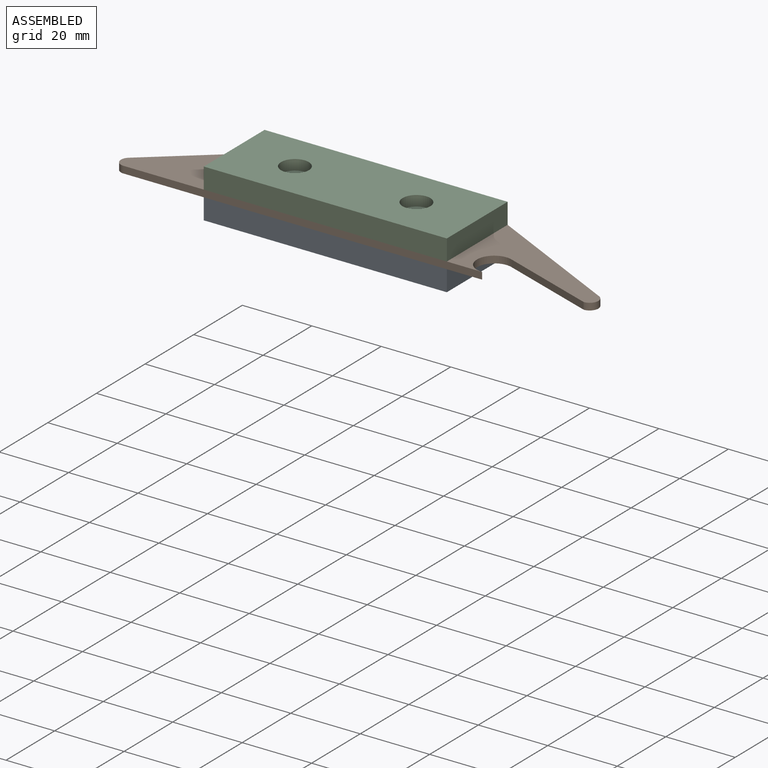
[diagram: assembled view]
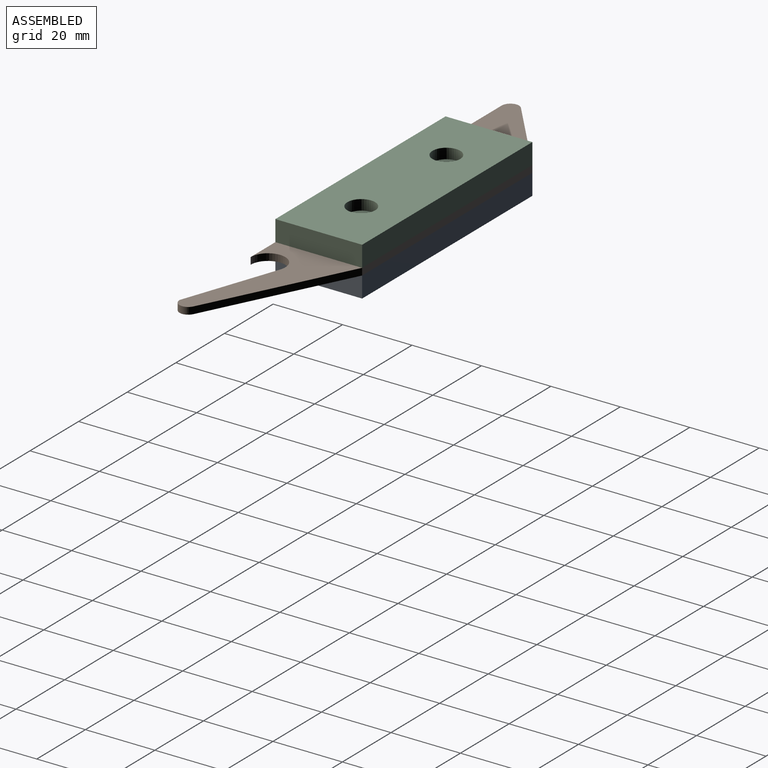
[diagram: assembled view, second angle]
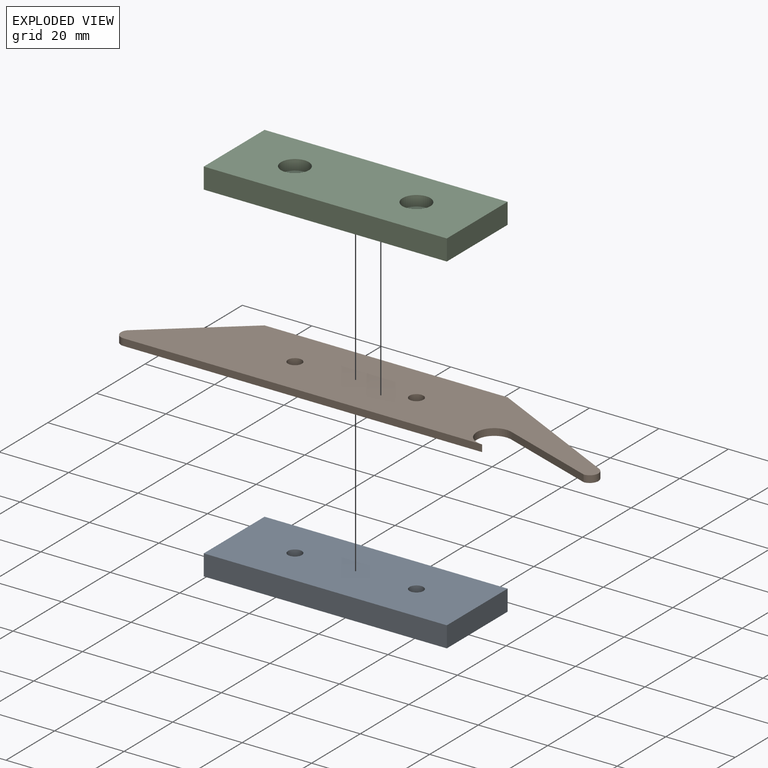
[diagram: exploded view]
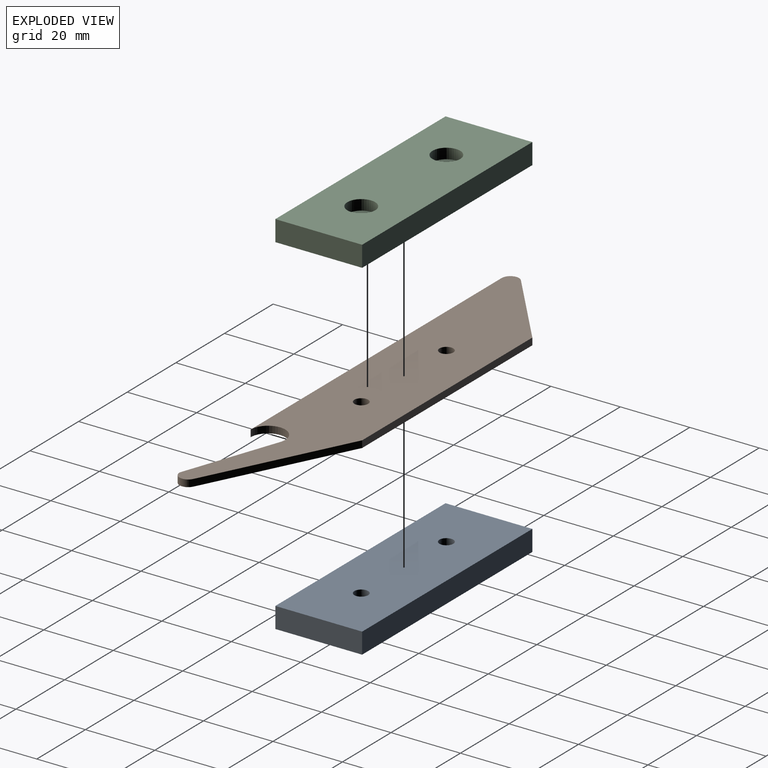
[diagram: exploded view, second angle]
ASSEMBLY  parts=3 mates=2
PART A: 12 faces, bbox 70x25x6 mm
  f0: plane 25x6mm, normal (-1,0,0), area 150mm2, adj f1,f5,f6,f7
  f1: plane 70x6mm, normal (0,-1,0), area 420mm2, adj f0,f2,f6,f7
  f2: plane 25x6mm, normal (1,0,0), area 150mm2, adj f1,f5,f6,f7
  f3: cylinder r=4mm len=8mm, axis (0,0,-1), area 75.4mm2, adj f6,f9
  f4: cylinder r=4mm len=8mm, axis (0,0,-1), area 75.4mm2, adj f6,f11
  f5: plane 70x6mm, normal (0,1,0), area 420mm2, adj f0,f2,f6,f7
  f6: plane 70x25mm, normal (0,0,1), area 1649.5mm2, adj f0,f1,f2,f3,f4,f5
  f7: plane 70x25mm, normal (0,0,-1), area 1724.9mm2, adj f0,f1,f2,f5,f8,f10
  f8: cylinder r=2mm len=4mm, axis (0,0,-1), area 37.7mm2, adj f7,f9
  f9: plane 8x8mm, normal (0,0,1), area 37.7mm2, adj f3,f8
  f10: cylinder r=2mm len=4mm, axis (0,0,-1), area 37.7mm2, adj f7,f11
  f11: plane 8x8mm, normal (0,0,1), area 37.7mm2, adj f4,f10
PART B: 12 faces, bbox 137.5x25x2 mm
  f0: plane 40.53x20.26mm, normal (0.45,0.89,0), area 90.6mm2, adj f1,f8,f10,f11
  f1: plane 70x2mm, normal (0,1,0), area 140mm2, adj f0,f2,f10,f11
  f2: plane 24.7x20.58mm, normal (-0.64,0.77,0), area 64.3mm2, adj f1,f3,f10,f11
  f3: cylinder r=2.5mm len=4.42mm, axis (0,0,-1), area 12.2mm2, adj f2,f4,f10,f11
  f4: plane 103.26x2mm, normal (0,-1,0), area 206.5mm2, adj f3,f5,f10,f11
  f5: cylinder r=5mm len=10mm, axis (0,0,-1), area 34.8mm2, adj f4,f6,f10,f11
  f6: plane 27.59x9.72mm, normal (-0.33,-0.94,0), area 58.5mm2, adj f5,f8,f10,f11
  f7: cylinder r=2mm len=4mm, axis (0,0,-1), area 25.1mm2, adj f10,f11
  f8: cylinder r=2.5mm len=4.74mm, axis (0,0,-1), area 13.4mm2, adj f0,f6,f10,f11
  f9: cylinder r=2mm len=4mm, axis (0,0,-1), area 25.1mm2, adj f10,f11
  f10: plane 137.5x25mm, normal (0,0,1), area 2507.4mm2, adj f0,f1,f2,f3,f4,f5,f6,f7
  f11: plane 137.5x25mm, normal (0,0,-1), area 2507.4mm2, adj f0,f1,f2,f3,f4,f5,f6,f7
PART C: same geometry as A
PLACE A rot(axis=(0,1,0),180deg) t=(91.98,7.08,-35.84)mm
PLACE B t=(21.98,7.08,-35.84)mm
PLACE C t=(21.98,7.08,-33.84)mm
MATE fastened C.f3 <-> B.f9  axis (0,0,-1) through (39.48,19.58,-33.84)mm
MATE fastened A.f4 <-> B.f9  axis (0,0,1) through (39.48,19.58,-35.84)mm
